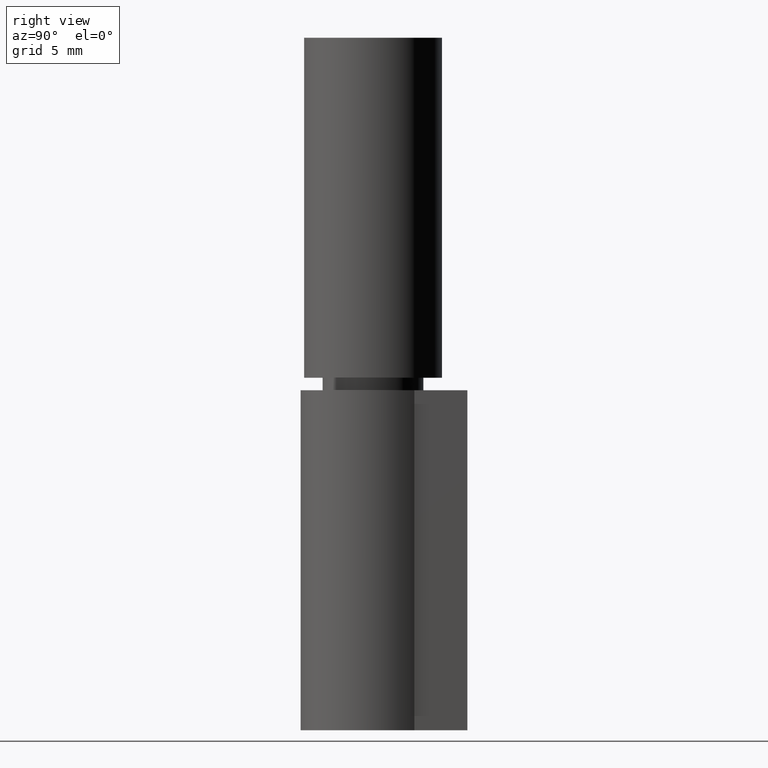
[diagram: clean part render]
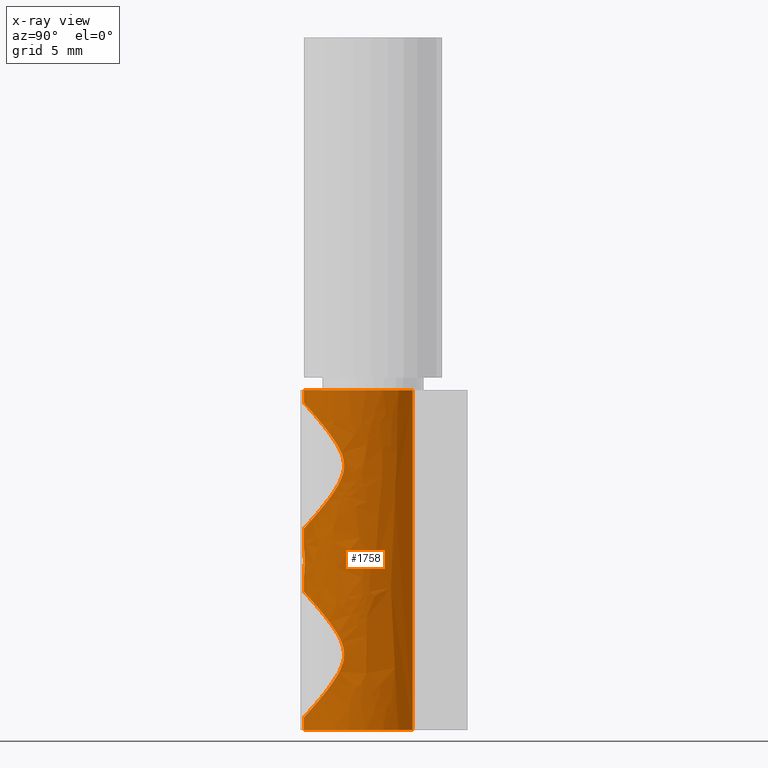
[diagram: x-ray — body ghosted, one internal face saturated and labeled with its STEP entity id]
A machine part, right view, then the same camera in x-ray: the body is ghosted and one INTERNAL B-rep face — a face not visible from any outside direction — is saturated and labeled: STEP entity #1758.
In plain terms, the highlighted face is a freeform B-spline surface patch.
Its self-contained STEP definition (entity closure, byte-faithful):
#96=CARTESIAN_POINT('',(-4.999809404037151,-2.291731154517972,21.043633673075721));
#97=VERTEX_POINT('',#96);
#103=CARTESIAN_POINT('',(0.008676858453115,-5.499993417099950,16.000008526232559));
#104=VERTEX_POINT('',#103);
#105=CARTESIAN_POINT('',(0.008676858453115,-5.499993417099950,16.000008526232559));
#106=CARTESIAN_POINT('',(-0.080784923827945,-5.500134550624921,15.999853276554420));
#107=CARTESIAN_POINT('',(-0.170549606938605,-5.498094897401253,16.002096592066550));
#108=CARTESIAN_POINT('',(-0.350699646057233,-5.489548678629170,16.011499682221821));
#109=CARTESIAN_POINT('',(-0.441114863073433,-5.483014545212495,16.018689827830791));
#110=CARTESIAN_POINT('',(-0.708650556812262,-5.457098901191289,16.047225255302148));
#111=CARTESIAN_POINT('',(-0.883649623946762,-5.431374606062905,16.075564668563370));
#112=CARTESIAN_POINT('',(-1.227349352279158,-5.364166543728204,16.149792405789420));
#113=CARTESIAN_POINT('',(-1.396048379229293,-5.322678177001357,16.195684821403319));
#114=CARTESIAN_POINT('',(-1.727341705989915,-5.224571579478838,16.304610105594659));
#115=CARTESIAN_POINT('',(-1.886942217365842,-5.168839463377718,16.366661082855881));
#116=CARTESIAN_POINT('',(-2.194580352817178,-5.045916549417417,16.504202206258970));
#117=CARTESIAN_POINT('',(-2.342752400184410,-4.978676278340488,16.579745394818289));
#118=CARTESIAN_POINT('',(-2.557198036339049,-4.870029231134101,16.702615128889619));
#119=CARTESIAN_POINT('',(-2.627461894592510,-4.832463424127649,16.745224902376972));
#120=CARTESIAN_POINT('',(-2.765075707142062,-4.755062342731410,16.833343828866099));
#121=CARTESIAN_POINT('',(-2.832067245767884,-4.715434991052143,16.878616026846249));
#122=CARTESIAN_POINT('',(-3.158546464471196,-4.513096640098529,17.110748164577199));
#123=CARTESIAN_POINT('',(-3.392917613499946,-4.337865701032975,17.314642688254079));
#124=CARTESIAN_POINT('',(-3.711169997530267,-4.061650263324478,17.645801212214941));
#125=CARTESIAN_POINT('',(-3.811640952820332,-3.967331319094510,17.760459472245518));
#126=CARTESIAN_POINT('',(-3.954338909557579,-3.823327560953631,17.939116680770990));
#127=CARTESIAN_POINT('',(-4.000551184544543,-3.774914592827679,17.999778121034311));
#128=CARTESIAN_POINT('',(-4.089669597621581,-3.678178361810828,18.122441324634160));
#129=CARTESIAN_POINT('',(-4.132671695294628,-3.629759973523819,18.184559861438181));
#130=CARTESIAN_POINT('',(-4.257183541597338,-3.484639733276066,18.373382483329308));
#131=CARTESIAN_POINT('',(-4.334212861784474,-3.388049853546200,18.502530147277191));
#132=CARTESIAN_POINT('',(-4.476908033376882,-3.197121259712310,18.768397036304350));
#133=CARTESIAN_POINT('',(-4.542576735238013,-3.102759303640565,18.905098522358589));
#134=CARTESIAN_POINT('',(-4.632641913837048,-2.965085267550396,19.117307755812959));
#135=CARTESIAN_POINT('',(-4.661253405254054,-2.919848456473182,19.189245859647471));
#136=CARTESIAN_POINT('',(-4.715609675131811,-2.831223575822745,19.335926819755102));
#137=CARTESIAN_POINT('',(-4.741385910462467,-2.787779609814800,19.410765627595708));
#138=CARTESIAN_POINT('',(-4.814059912015500,-2.661644440418063,19.639683088160819));
#139=CARTESIAN_POINT('',(-4.855884421372595,-2.583843147306717,19.796591238424671));
#140=CARTESIAN_POINT('',(-4.907928241049020,-2.482698135703603,20.041255712617421));
#141=CARTESIAN_POINT('',(-4.923484380651025,-2.451605491699300,20.124376092272321));
#142=CARTESIAN_POINT('',(-4.943910961021643,-2.409999535110414,20.251937654696519));
#143=CARTESIAN_POINT('',(-4.950243977492641,-2.396951556336771,20.295029096335611));
#144=CARTESIAN_POINT('',(-4.961784589882092,-2.372970028874875,20.381458758253839));
#145=CARTESIAN_POINT('',(-4.967005711705366,-2.362009638988951,20.424867736673772));
#146=CARTESIAN_POINT('',(-4.990319971063668,-2.312731457381507,20.642942584221931));
#147=CARTESIAN_POINT('',(-5.000089183198717,-2.291119200301539,20.820714967014059));
#148=CARTESIAN_POINT('',(-4.999992603734071,-2.291329949758778,21.016207306805441));
#149=CARTESIAN_POINT('',(-4.999929024735886,-2.291469165073258,21.029928814025642));
#150=CARTESIAN_POINT('',(-4.999809404037151,-2.291731154517972,21.043633673075721));
#151=B_SPLINE_CURVE_WITH_KNOTS('',3,(#105,#106,#107,#108,#109,#110,#111,#112,#113,#114,#115,#116,#117,#118,#119,#120,#121,#122,#123,#124,#125,#126,#127,#128,#129,#130,#131,#132,#133,#134,#135,#136,#137,#138,#139,#140,#141,#142,#143,#144,#145,#146,#147,#148,#149,#150),.UNSPECIFIED.,.F.,.U.,(4,2,2,2,2,2,2,2,2,2,2,2,2,2,2,2,2,2,2,2,2,2,4),(0.499999999999985,0.507812499999985,0.515624999999985,0.531249999999986,0.546874999999986,0.562499999999986,0.578124999999986,0.585937499999986,0.593749999999986,0.624999999999987,0.640624999999987,0.648437499999987,0.656249999999987,0.671874999999986,0.687499999999986,0.695312499999986,0.703124999999986,0.718749999999985,0.726562499999985,0.730468749999985,0.734374999999985,0.749999999999986,0.751180852995410),.UNSPECIFIED.);
#152=EDGE_CURVE('',#104,#97,#151,.T.);
#154=CARTESIAN_POINT('',(4.961330808935002,-2.373882392296829,20.379361019591158));
#155=VERTEX_POINT('',#154);
#156=CARTESIAN_POINT('',(4.961330808935002,-2.373882392296829,20.379361019591158));
#157=CARTESIAN_POINT('',(4.959088415303588,-2.378568334688204,20.361436829166820));
#158=CARTESIAN_POINT('',(4.956753091624329,-2.383431991897165,20.343554438352410));
#159=CARTESIAN_POINT('',(4.948445386169573,-2.400664333857982,20.282511320876420));
#160=CARTESIAN_POINT('',(4.942058526417992,-2.413797092986227,20.239811808951110));
#161=CARTESIAN_POINT('',(4.921462427600614,-2.455665007517480,20.113136917065411));
#162=CARTESIAN_POINT('',(4.905821867546259,-2.486859252249547,20.030579556220470));
#163=CARTESIAN_POINT('',(4.853597156467143,-2.588141527937298,19.787541039380720));
#164=CARTESIAN_POINT('',(4.811747444323277,-2.665814080688976,19.631634073252609));
#165=CARTESIAN_POINT('',(4.739155646772066,-2.791567567313084,19.404150399025561));
#166=CARTESIAN_POINT('',(4.713256268393127,-2.835142021115774,19.329273999388391));
#167=CARTESIAN_POINT('',(4.658712222898223,-2.923903571547584,19.182719022130598));
#168=CARTESIAN_POINT('',(4.630022798872703,-2.969174383487604,19.110879728573369));
#169=CARTESIAN_POINT('',(4.539779405076463,-3.106853499816067,18.899057376230470));
#170=CARTESIAN_POINT('',(4.474065628863778,-3.201089808219844,18.762733489810770));
#171=CARTESIAN_POINT('',(4.331474389874717,-3.391542690334147,18.497810204967660));
#172=CARTESIAN_POINT('',(4.254593775759331,-3.487782578590235,18.369229287392400));
#173=CARTESIAN_POINT('',(4.089130640738977,-3.680380283324808,18.118761925428331));
#174=CARTESIAN_POINT('',(4.000549664488215,-3.776750512340317,17.996883499915601));
#175=CARTESIAN_POINT('',(3.858166758270776,-3.920351344539728,17.818754803592441));
#176=CARTESIAN_POINT('',(3.809036657891725,-3.968130144490214,17.760082807190450));
#177=CARTESIAN_POINT('',(3.708329520686572,-4.062401481608275,17.645284570276971));
#178=CARTESIAN_POINT('',(3.656667863371630,-4.108984842103827,17.589044366213049));
#179=CARTESIAN_POINT('',(3.391678599296154,-4.338814193692006,17.313534351848741));
#180=CARTESIAN_POINT('',(3.158547802931772,-4.512837148450661,17.111072188894060));
#181=CARTESIAN_POINT('',(2.771820823709972,-4.752900283825866,16.835621428214122));
#182=CARTESIAN_POINT('',(2.636696663350292,-4.829420806716314,16.748561139928849));
#183=CARTESIAN_POINT('',(2.423443093949135,-4.937945853013662,16.625798086104979));
#184=CARTESIAN_POINT('',(2.350481701859942,-4.973125719411288,16.586129509301120));
#185=CARTESIAN_POINT('',(2.201214759960393,-5.040971604135963,16.509825129490480));
#186=CARTESIAN_POINT('',(2.125460012818958,-5.073391904562900,16.473465145179109));
#187=CARTESIAN_POINT('',(1.894751085388502,-5.165984958483707,16.369844771567120));
#188=CARTESIAN_POINT('',(1.736363448555255,-5.221503610537742,16.308024843529822));
#189=CARTESIAN_POINT('',(1.409752947784514,-5.318989655892848,16.199772369493889));
#190=CARTESIAN_POINT('',(1.241535203753097,-5.360964841027730,16.153332475188879));
#191=CARTESIAN_POINT('',(0.981019212165934,-5.412526579925899,16.096379615027981));
#192=CARTESIAN_POINT('',(0.893437540620994,-5.427672677341872,16.079669575455512));
#193=CARTESIAN_POINT('',(0.718086616520203,-5.453642081114246,16.051037110692249));
#194=CARTESIAN_POINT('',(0.630115457190484,-5.464506038457804,16.039069820569878));
#195=CARTESIAN_POINT('',(0.365314755914720,-5.490721086637914,16.010203441102679));
#196=CARTESIAN_POINT('',(0.187600423016770,-5.499711150050008,16.000319025588851));
#197=CARTESIAN_POINT('',(0.008676858453115,-5.499993417099950,16.000008526232559));
#198=B_SPLINE_CURVE_WITH_KNOTS('',3,(#156,#157,#158,#159,#160,#161,#162,#163,#164,#165,#166,#167,#168,#169,#170,#171,#172,#173,#174,#175,#176,#177,#178,#179,#180,#181,#182,#183,#184,#185,#186,#187,#188,#189,#190,#191,#192,#193,#194,#195,#196,#197),.UNSPECIFIED.,.F.,.U.,(4,2,2,2,2,2,2,2,2,2,2,2,2,2,2,2,2,2,2,2,4),(0.267921268389161,0.269531249999978,0.273437499999978,0.281249999999979,0.296874999999980,0.304687499999980,0.312499999999980,0.328124999999981,0.343749999999982,0.359374999999982,0.367187499999982,0.374999999999983,0.406249999999983,0.421874999999984,0.429687499999984,0.437499999999984,0.453124999999984,0.468749999999985,0.476562499999985,0.484374999999985,0.499999999999985),.UNSPECIFIED.);
#199=EDGE_CURVE('',#155,#104,#198,.T.);
#249=CARTESIAN_POINT('',(8.334804E-015,-5.500000261236031,26.000000997439649));
#250=VERTEX_POINT('',#249);
#251=CARTESIAN_POINT('',(8.334804E-015,-5.500000261236031,26.000000997439649));
#252=CARTESIAN_POINT('',(0.181587928736690,-5.500000265363015,26.000000997439649));
#253=CARTESIAN_POINT('',(0.360691474668521,-5.491034096903575,25.990142896635330));
#254=CARTESIAN_POINT('',(0.714240424979313,-5.456318884250115,25.951917306236890));
#255=CARTESIAN_POINT('',(0.888684585758922,-5.430565252638966,25.923544971929449));
#256=CARTESIAN_POINT('',(1.146963319821644,-5.379793779031893,25.867468155357489));
#257=CARTESIAN_POINT('',(1.232490467084030,-5.360842633896119,25.846517750625338));
#258=CARTESIAN_POINT('',(1.402417684959101,-5.318918377787195,25.800103290857621));
#259=CARTESIAN_POINT('',(1.486358800048491,-5.296047179589971,25.774751736253791));
#260=CARTESIAN_POINT('',(1.733166437057914,-5.222606397142189,25.693204860751710));
#261=CARTESIAN_POINT('',(1.891936394143571,-5.167006060920747,25.631295691770809));
#262=CARTESIAN_POINT('',(2.199021237986424,-5.043975131223390,25.493620858988869));
#263=CARTESIAN_POINT('',(2.347331397725299,-4.976537988697775,25.417850002408940));
#264=CARTESIAN_POINT('',(2.562446511266812,-4.867274662650745,25.294265370677561));
#265=CARTESIAN_POINT('',(2.632809702849915,-4.829545693024178,25.251462505337280));
#266=CARTESIAN_POINT('',(2.769661360783474,-4.752386488408163,25.163603743996870));
#267=CARTESIAN_POINT('',(2.836349383043150,-4.712856748663134,25.118435537835762));
#268=CARTESIAN_POINT('',(3.161629078040123,-4.510872240541992,24.886669976445010));
#269=CARTESIAN_POINT('',(3.396027523846340,-4.335484087013582,24.682575438114380));
#270=CARTESIAN_POINT('',(3.661802543530612,-4.104414470274930,24.405452431986522));
#271=CARTESIAN_POINT('',(3.713579815786010,-4.057605901081645,24.348910538088340));
#272=CARTESIAN_POINT('',(3.814445504301900,-3.962934478274310,24.233555644321630));
#273=CARTESIAN_POINT('',(3.863580279005080,-3.915017962424532,24.174674272558249));
#274=CARTESIAN_POINT('',(4.005959559394571,-3.771018530978817,23.995914866824410));
#275=CARTESIAN_POINT('',(4.094567787501176,-3.674340097908105,23.873535242933588));
#276=CARTESIAN_POINT('',(4.260104170196593,-3.481060196392913,23.621869965474151));
#277=CARTESIAN_POINT('',(4.337031083426829,-3.384445789761424,23.492593012131511));
#278=CARTESIAN_POINT('',(4.479697350340715,-3.193216341149601,23.226021037705792));
#279=CARTESIAN_POINT('',(4.545440339792166,-3.098576615119479,23.088746136483419));
#280=CARTESIAN_POINT('',(4.635681788303387,-2.960334363800767,22.875214423216718));
#281=CARTESIAN_POINT('',(4.664409234683967,-2.914806741814870,22.802628972947730));
#282=CARTESIAN_POINT('',(4.718778434592707,-2.825941471379133,22.655087464036558));
#283=CARTESIAN_POINT('',(4.744374422298876,-2.782684211664854,22.580275739606090));
#284=CARTESIAN_POINT('',(4.816334433026022,-2.657498301958202,22.352166042106880));
#285=CARTESIAN_POINT('',(4.857920699485886,-2.580008294991763,22.195281916973052));
#286=CARTESIAN_POINT('',(4.909773878380458,-2.479045463802991,21.949286498722810));
#287=CARTESIAN_POINT('',(4.925298072860339,-2.447954291927216,21.865330167669899));
#288=CARTESIAN_POINT('',(4.952077952017502,-2.393317213407169,21.695903028271069));
#289=CARTESIAN_POINT('',(4.963404937441652,-2.369638939906114,21.610134166671081));
#290=CARTESIAN_POINT('',(4.981708729984222,-2.330913303631254,21.436153707869749));
#291=CARTESIAN_POINT('',(4.988686083461489,-2.315870033680356,21.347941238389598));
#292=CARTESIAN_POINT('',(4.995640008284445,-2.300811292730121,21.213527858224090));
#293=CARTESIAN_POINT('',(4.997374952882122,-2.297035474572037,21.168212462908720));
#294=CARTESIAN_POINT('',(4.999602160259736,-2.292183851321631,21.077652500548460));
#295=CARTESIAN_POINT('',(5.000095999870496,-2.291104874849864,21.032546434138670));
#296=CARTESIAN_POINT('',(4.999539243316150,-2.292319771982752,20.807868833356508));
#297=CARTESIAN_POINT('',(4.989449516925052,-2.314628493521743,20.630873255737342));
#298=CARTESIAN_POINT('',(4.967536751959891,-2.360877070322448,20.430575710205499));
#299=CARTESIAN_POINT('',(4.964528436286543,-2.367198973484117,20.404925832721698));
#300=CARTESIAN_POINT('',(4.961330808935002,-2.373882392296829,20.379361019591158));
#301=B_SPLINE_CURVE_WITH_KNOTS('',3,(#251,#252,#253,#254,#255,#256,#257,#258,#259,#260,#261,#262,#263,#264,#265,#266,#267,#268,#269,#270,#271,#272,#273,#274,#275,#276,#277,#278,#279,#280,#281,#282,#283,#284,#285,#286,#287,#288,#289,#290,#291,#292,#293,#294,#295,#296,#297,#298,#299,#300),.UNSPECIFIED.,.F.,.U.,(4,2,2,2,2,2,2,2,2,2,2,2,2,2,2,2,2,2,2,2,2,2,2,2,4),(0.0,0.015624999999999,0.031249999999997,0.039062499999996,0.046874999999995,0.062499999999994,0.078124999999993,0.085937499999992,0.093749999999991,0.124999999999988,0.132812499999988,0.140624999999987,0.156249999999986,0.171874999999984,0.187499999999983,0.195312499999982,0.203124999999982,0.218749999999980,0.226562499999979,0.234374999999979,0.242187499999978,0.246093749999978,0.249999999999978,0.265624999999978,0.267921268389161),.UNSPECIFIED.);
#302=EDGE_CURVE('',#250,#155,#301,.T.);
#304=CARTESIAN_POINT('',(-4.999809404037151,-2.291731154517972,21.043633673075721));
#305=CARTESIAN_POINT('',(-4.999136218716493,-2.293202482047438,21.120599877438970));
#306=CARTESIAN_POINT('',(-4.996689068687868,-2.298546011524399,21.197040954605349));
#307=CARTESIAN_POINT('',(-4.987703046087425,-2.317988467679965,21.361616267186061));
#308=CARTESIAN_POINT('',(-4.980513357640310,-2.333471090744721,21.449627092508599));
#309=CARTESIAN_POINT('',(-4.966404971656946,-2.363272902115973,21.580294793935259));
#310=CARTESIAN_POINT('',(-4.961147525447735,-2.374302000412293,21.623626075961781));
#311=CARTESIAN_POINT('',(-4.949543835802675,-2.398397318531146,21.709866354592450));
#312=CARTESIAN_POINT('',(-4.943179633652782,-2.411499778874976,21.752882641953789));
#313=CARTESIAN_POINT('',(-4.922621111614618,-2.453340656681865,21.880469075396519));
#314=CARTESIAN_POINT('',(-4.907005763363770,-2.484521029452940,21.963433154675950));
#315=CARTESIAN_POINT('',(-4.854911133243586,-2.585671988419703,22.207256654471930));
#316=CARTESIAN_POINT('',(-4.813222747261709,-2.663130054817260,22.363116826817251));
#317=CARTESIAN_POINT('',(-4.741104651518239,-2.788251229627990,22.590040675597550));
#318=CARTESIAN_POINT('',(-4.715456014499448,-2.831481607373428,22.664517908846928));
#319=CARTESIAN_POINT('',(-4.660972654135478,-2.920298649153567,22.811485441325701));
#320=CARTESIAN_POINT('',(-4.632137358633913,-2.965877491097034,22.883946447805592));
#321=CARTESIAN_POINT('',(-4.541683139536753,-3.104082673218060,23.096880139611070));
#322=CARTESIAN_POINT('',(-4.475881804977987,-3.198552103796741,23.233645765708150));
#323=CARTESIAN_POINT('',(-4.333313568960246,-3.389194604782345,23.499016882945650));
#324=CARTESIAN_POINT('',(-4.256542779873210,-3.485392275643062,23.627601652434169));
#325=CARTESIAN_POINT('',(-4.091597501110796,-3.677626768917929,23.877720846195309));
#326=CARTESIAN_POINT('',(-4.003423825719435,-3.773676360790262,23.999246295117000));
#327=CARTESIAN_POINT('',(-3.861973460043877,-3.916594625581618,24.176615494811220));
#328=CARTESIAN_POINT('',(-3.813288368501809,-3.964044120594545,24.234914589265209));
#329=CARTESIAN_POINT('',(-3.712697092564347,-4.058409891090378,24.349883745655362));
#330=CARTESIAN_POINT('',(-3.660676373020296,-4.105424377055870,24.406670896479230));
#331=CARTESIAN_POINT('',(-3.393576171887767,-4.337489029483122,24.684951703999289));
#332=CARTESIAN_POINT('',(-3.158715045510495,-4.512839509248054,24.888943447771680));
#333=CARTESIAN_POINT('',(-2.769656421224683,-4.754190100658805,25.165855272201458));
#334=CARTESIAN_POINT('',(-2.633799825173680,-4.831023179712308,25.253261930221200));
#335=CARTESIAN_POINT('',(-2.419575906024463,-4.939847177842526,25.376350498489408));
#336=CARTESIAN_POINT('',(-2.346212864072399,-4.975136288713563,25.416137427594890));
#337=CARTESIAN_POINT('',(-2.197408833238110,-5.042627081517066,25.492035079332851));
#338=CARTESIAN_POINT('',(-2.121852976699979,-5.074898224175911,25.528224976260130));
#339=CARTESIAN_POINT('',(-1.891628819590702,-5.167116370263851,25.631418732569500));
#340=CARTESIAN_POINT('',(-1.733416110406895,-5.222482460270861,25.693066291993880));
#341=CARTESIAN_POINT('',(-1.488428153538835,-5.295455795448400,25.774095670720101));
#342=CARTESIAN_POINT('',(-1.405484517935641,-5.318097670058886,25.799193834605610));
#343=CARTESIAN_POINT('',(-1.236898924388103,-5.359816146627351,25.845382269260220));
#344=CARTESIAN_POINT('',(-1.151031796261812,-5.378936448207682,25.866520774915060));
#345=CARTESIAN_POINT('',(-0.890678582176010,-5.430284969420651,25.923236460579009));
#346=CARTESIAN_POINT('',(-0.715233309624032,-5.456207805398440,25.951795000914419));
#347=CARTESIAN_POINT('',(-0.449203030117919,-5.482349819756129,25.980580509177621));
#348=CARTESIAN_POINT('',(-0.360048282424248,-5.488936480978458,25.987828641313360));
#349=CARTESIAN_POINT('',(-0.180763047445453,-5.497761626391798,25.997538800332752));
#350=CARTESIAN_POINT('',(-0.090793964368346,-5.500000259172538,26.000000997439638));
#351=CARTESIAN_POINT('',(8.612631E-015,-5.500000261236029,26.000000997439638));
#352=B_SPLINE_CURVE_WITH_KNOTS('',3,(#304,#305,#306,#307,#308,#309,#310,#311,#312,#313,#314,#315,#316,#317,#318,#319,#320,#321,#322,#323,#324,#325,#326,#327,#328,#329,#330,#331,#332,#333,#334,#335,#336,#337,#338,#339,#340,#341,#342,#343,#344,#345,#346,#347,#348,#349,#350,#351),.UNSPECIFIED.,.F.,.U.,(4,2,2,2,2,2,2,2,2,2,2,2,2,2,2,2,2,2,2,2,2,2,2,4),(0.751180852995411,0.757812499999986,0.765624999999986,0.769531249999986,0.773437499999986,0.781249999999986,0.796874999999987,0.804687499999988,0.812499999999988,0.828124999999989,0.843749999999990,0.859374999999991,0.867187499999991,0.874999999999992,0.906249999999994,0.921874999999995,0.929687499999996,0.937499999999996,0.953124999999997,0.960937499999998,0.968749999999998,0.984374999999999,0.992187500000000,1.0),.UNSPECIFIED.);
#353=EDGE_CURVE('',#97,#250,#352,.T.);
#424=CARTESIAN_POINT('',(-4.999809404037151,-2.291731154517972,6.043633673075664));
#425=VERTEX_POINT('',#424);
#431=CARTESIAN_POINT('',(0.008676858453734,-5.499993417099950,1.000008526232532));
#432=VERTEX_POINT('',#431);
#433=CARTESIAN_POINT('',(0.008676858453734,-5.499993417099950,1.000008526232532));
#434=CARTESIAN_POINT('',(-0.080784923828001,-5.500134550624921,0.999853276554391));
#435=CARTESIAN_POINT('',(-0.170549606938661,-5.498094897401249,1.002096592066513));
#436=CARTESIAN_POINT('',(-0.350699646057288,-5.489548678629166,1.011499682221778));
#437=CARTESIAN_POINT('',(-0.441114863073495,-5.483014545212488,1.018689827830760));
#438=CARTESIAN_POINT('',(-0.708650556812319,-5.457098901191280,1.047225255302118));
#439=CARTESIAN_POINT('',(-0.883649623946813,-5.431374606062898,1.075564668563340));
#440=CARTESIAN_POINT('',(-1.227349352279206,-5.364166543728192,1.149792405789396));
#441=CARTESIAN_POINT('',(-1.396048379229337,-5.322678177001347,1.195684821403293));
#442=CARTESIAN_POINT('',(-1.727341705989955,-5.224571579478824,1.304610105594631));
#443=CARTESIAN_POINT('',(-1.886942217365883,-5.168839463377702,1.366661082855847));
#444=CARTESIAN_POINT('',(-2.194580352817217,-5.045916549417401,1.504202206258959));
#445=CARTESIAN_POINT('',(-2.342752400184444,-4.978676278340473,1.579745394818269));
#446=CARTESIAN_POINT('',(-2.557198036339084,-4.870029231134085,1.702615128889596));
#447=CARTESIAN_POINT('',(-2.627461894592545,-4.832463424127629,1.745224902376944));
#448=CARTESIAN_POINT('',(-2.765075707142094,-4.755062342731389,1.833343828866078));
#449=CARTESIAN_POINT('',(-2.832067245767912,-4.715434991052124,1.878616026846222));
#450=CARTESIAN_POINT('',(-3.158546464471218,-4.513096640098509,2.110748164577175));
#451=CARTESIAN_POINT('',(-3.392917613499967,-4.337865701032958,2.314642688254059));
#452=CARTESIAN_POINT('',(-3.711169997530282,-4.061650263324465,2.645801212214911));
#453=CARTESIAN_POINT('',(-3.811640952820346,-3.967331319094498,2.760459472245495));
#454=CARTESIAN_POINT('',(-3.954338909557590,-3.823327560953621,2.939116680770968));
#455=CARTESIAN_POINT('',(-4.000551184544551,-3.774914592827665,2.999778121034280));
#456=CARTESIAN_POINT('',(-4.089669597621589,-3.678178361810817,3.122441324634137));
#457=CARTESIAN_POINT('',(-4.132671695294638,-3.629759973523808,3.184559861438155));
#458=CARTESIAN_POINT('',(-4.257183541597345,-3.484639733276056,3.373382483329281));
#459=CARTESIAN_POINT('',(-4.334212861784481,-3.388049853546190,3.502530147277155));
#460=CARTESIAN_POINT('',(-4.476908033376889,-3.197121259712302,3.768397036304330));
#461=CARTESIAN_POINT('',(-4.542576735238020,-3.102759303640558,3.905098522358566));
#462=CARTESIAN_POINT('',(-4.632641913837055,-2.965085267550388,4.117307755812938));
#463=CARTESIAN_POINT('',(-4.661253405254057,-2.919848456473176,4.189245859647442));
#464=CARTESIAN_POINT('',(-4.715609675131813,-2.831223575822739,4.335926819755060));
#465=CARTESIAN_POINT('',(-4.741385910462472,-2.787779609814792,4.410765627595692));
#466=CARTESIAN_POINT('',(-4.814059912015501,-2.661644440418057,4.639683088160785));
#467=CARTESIAN_POINT('',(-4.855884421372598,-2.583843147306713,4.796591238424637));
#468=CARTESIAN_POINT('',(-4.907928241049022,-2.482698135703599,5.041255712617384));
#469=CARTESIAN_POINT('',(-4.923484380651026,-2.451605491699300,5.124376092272289));
#470=CARTESIAN_POINT('',(-4.943910961021643,-2.409999535110413,5.251937654696483));
#471=CARTESIAN_POINT('',(-4.950243977492643,-2.396951556336767,5.295029096335569));
#472=CARTESIAN_POINT('',(-4.961784589882093,-2.372970028874871,5.381458758253799));
#473=CARTESIAN_POINT('',(-4.967005711705366,-2.362009638988949,5.424867736673741));
#474=CARTESIAN_POINT('',(-4.990319971063673,-2.312731457381507,5.642942584221912));
#475=CARTESIAN_POINT('',(-5.000089183198716,-2.291119200301540,5.820714967014019));
#476=CARTESIAN_POINT('',(-4.999992603734071,-2.291329949758779,6.016207306805407));
#477=CARTESIAN_POINT('',(-4.999929024735885,-2.291469165073259,6.029928814025609));
#478=CARTESIAN_POINT('',(-4.999809404037151,-2.291731154517972,6.043633673075664));
#479=B_SPLINE_CURVE_WITH_KNOTS('',3,(#433,#434,#435,#436,#437,#438,#439,#440,#441,#442,#443,#444,#445,#446,#447,#448,#449,#450,#451,#452,#453,#454,#455,#456,#457,#458,#459,#460,#461,#462,#463,#464,#465,#466,#467,#468,#469,#470,#471,#472,#473,#474,#475,#476,#477,#478),.UNSPECIFIED.,.F.,.U.,(4,2,2,2,2,2,2,2,2,2,2,2,2,2,2,2,2,2,2,2,2,2,4),(0.500000000000005,0.507812500000005,0.515625000000005,0.531250000000005,0.546875000000005,0.562500000000005,0.578125000000005,0.585937500000005,0.593750000000005,0.625000000000005,0.640625000000005,0.648437500000005,0.656250000000005,0.671875000000005,0.687500000000005,0.695312500000005,0.703125000000005,0.718750000000005,0.726562500000005,0.730468750000005,0.734375000000005,0.750000000000005,0.751180852995430),.UNSPECIFIED.);
#480=EDGE_CURVE('',#432,#425,#479,.T.);
#482=CARTESIAN_POINT('',(4.961330808935004,-2.373882392296827,5.379361019591132));
#483=VERTEX_POINT('',#482);
#484=CARTESIAN_POINT('',(4.961330808935004,-2.373882392296827,5.379361019591132));
#485=CARTESIAN_POINT('',(4.959088415303586,-2.378568334688211,5.361436829166756));
#486=CARTESIAN_POINT('',(4.956753091624321,-2.383431991897181,5.343554438352308));
#487=CARTESIAN_POINT('',(4.948445386169558,-2.400664333858009,5.282511320876278));
#488=CARTESIAN_POINT('',(4.942058526417979,-2.413797092986256,5.239811808950971));
#489=CARTESIAN_POINT('',(4.921462427600596,-2.455665007517515,5.113136917065281));
#490=CARTESIAN_POINT('',(4.905821867546243,-2.486859252249582,5.030579556220339));
#491=CARTESIAN_POINT('',(4.853597156467123,-2.588141527937335,4.787541039380594));
#492=CARTESIAN_POINT('',(4.811747444323252,-2.665814080689015,4.631634073252482));
#493=CARTESIAN_POINT('',(4.739155646772039,-2.791567567313126,4.404150399025438));
#494=CARTESIAN_POINT('',(4.713256268393096,-2.835142021115823,4.329273999388258));
#495=CARTESIAN_POINT('',(4.658712222898194,-2.923903571547633,4.182719022130473));
#496=CARTESIAN_POINT('',(4.630022798872672,-2.969174383487654,4.110879728573242));
#497=CARTESIAN_POINT('',(4.539779405076428,-3.106853499816116,3.899057376230350));
#498=CARTESIAN_POINT('',(4.474065628863746,-3.201089808219892,3.762733489810673));
#499=CARTESIAN_POINT('',(4.331474389874678,-3.391542690334194,3.497810204967561));
#500=CARTESIAN_POINT('',(4.254593775759294,-3.487782578590281,3.369229287392293));
#501=CARTESIAN_POINT('',(4.089130640738935,-3.680380283324853,3.118761925428232));
#502=CARTESIAN_POINT('',(4.000549664488173,-3.776750512340361,2.996883499915507));
#503=CARTESIAN_POINT('',(3.858166758270732,-3.920351344539773,2.818754803592349));
#504=CARTESIAN_POINT('',(3.809036657891679,-3.968130144490258,2.760082807190353));
#505=CARTESIAN_POINT('',(3.708329520686528,-4.062401481608317,2.645284570276882));
#506=CARTESIAN_POINT('',(3.656667863371583,-4.108984842103871,2.589044366212950));
#507=CARTESIAN_POINT('',(3.391678599296105,-4.338814193692048,2.313534351848659));
#508=CARTESIAN_POINT('',(3.158547802931725,-4.512837148450697,2.111072188893979));
#509=CARTESIAN_POINT('',(2.771820823709921,-4.752900283825897,1.835621428214045));
#510=CARTESIAN_POINT('',(2.636696663350244,-4.829420806716342,1.748561139928781));
#511=CARTESIAN_POINT('',(2.423443093949082,-4.937945853013686,1.625798086104905));
#512=CARTESIAN_POINT('',(2.350481701859884,-4.973125719411315,1.586129509301055));
#513=CARTESIAN_POINT('',(2.201214759960334,-5.040971604135988,1.509825129490409));
#514=CARTESIAN_POINT('',(2.125460012818900,-5.073391904562925,1.473465145179035));
#515=CARTESIAN_POINT('',(1.894751085388443,-5.165984958483731,1.369844771567060));
#516=CARTESIAN_POINT('',(1.736363448555197,-5.221503610537760,1.308024843529760));
#517=CARTESIAN_POINT('',(1.409752947784454,-5.318989655892864,1.199772369493831));
#518=CARTESIAN_POINT('',(1.241535203753038,-5.360964841027744,1.153332475188821));
#519=CARTESIAN_POINT('',(0.981019212165873,-5.412526579925908,1.096379615027919));
#520=CARTESIAN_POINT('',(0.893437540620931,-5.427672677341881,1.079669575455459));
#521=CARTESIAN_POINT('',(0.718086616520140,-5.453642081114253,1.051037110692201));
#522=CARTESIAN_POINT('',(0.630115457190422,-5.464506038457810,1.039069820569831));
#523=CARTESIAN_POINT('',(0.365314755914658,-5.490721086637919,1.010203441102636));
#524=CARTESIAN_POINT('',(0.187600423016711,-5.499711150050009,1.000319025588814));
#525=CARTESIAN_POINT('',(0.008676858453734,-5.499993417099950,1.000008526232532));
#526=B_SPLINE_CURVE_WITH_KNOTS('',3,(#484,#485,#486,#487,#488,#489,#490,#491,#492,#493,#494,#495,#496,#497,#498,#499,#500,#501,#502,#503,#504,#505,#506,#507,#508,#509,#510,#511,#512,#513,#514,#515,#516,#517,#518,#519,#520,#521,#522,#523,#524,#525),.UNSPECIFIED.,.F.,.U.,(4,2,2,2,2,2,2,2,2,2,2,2,2,2,2,2,2,2,2,2,4),(0.267921268389184,0.269531250000004,0.273437500000004,0.281250000000004,0.296875000000004,0.304687500000004,0.312500000000004,0.328125000000004,0.343750000000004,0.359375000000004,0.367187500000004,0.375000000000004,0.406250000000004,0.421875000000005,0.429687500000005,0.437500000000005,0.453125000000005,0.468750000000005,0.476562500000005,0.484375000000005,0.500000000000005),.UNSPECIFIED.);
#527=EDGE_CURVE('',#483,#432,#526,.T.);
#577=CARTESIAN_POINT('',(-4.092863E-015,-5.500000261236031,11.000000997439599));
#578=VERTEX_POINT('',#577);
#579=CARTESIAN_POINT('',(-4.092863E-015,-5.500000261236031,11.000000997439599));
#580=CARTESIAN_POINT('',(0.181587928736692,-5.500000265363013,11.000000997439599));
#581=CARTESIAN_POINT('',(0.360691474668526,-5.491034096903575,10.990142896635289));
#582=CARTESIAN_POINT('',(0.714240424979322,-5.456318884250115,10.951917306236860));
#583=CARTESIAN_POINT('',(0.888684585758933,-5.430565252638965,10.923544971929420));
#584=CARTESIAN_POINT('',(1.146963319821659,-5.379793779031892,10.867468155357450));
#585=CARTESIAN_POINT('',(1.232490467084045,-5.360842633896115,10.846517750625290));
#586=CARTESIAN_POINT('',(1.402417684959118,-5.318918377787188,10.800103290857580));
#587=CARTESIAN_POINT('',(1.486358800048507,-5.296047179589967,10.774751736253750));
#588=CARTESIAN_POINT('',(1.733166437057932,-5.222606397142182,10.693204860751660));
#589=CARTESIAN_POINT('',(1.891936394143592,-5.167006060920741,10.631295691770760));
#590=CARTESIAN_POINT('',(2.199021237986448,-5.043975131223379,10.493620858988811));
#591=CARTESIAN_POINT('',(2.347331397725323,-4.976537988697762,10.417850002408890));
#592=CARTESIAN_POINT('',(2.562446511266840,-4.867274662650731,10.294265370677500));
#593=CARTESIAN_POINT('',(2.632809702849939,-4.829545693024165,10.251462505337230));
#594=CARTESIAN_POINT('',(2.769661360783498,-4.752386488408148,10.163603743996820));
#595=CARTESIAN_POINT('',(2.836349383043178,-4.712856748663119,10.118435537835699));
#596=CARTESIAN_POINT('',(3.161629078040153,-4.510872240541973,9.886669976444949));
#597=CARTESIAN_POINT('',(3.396027523846369,-4.335484087013557,9.682575438114302));
#598=CARTESIAN_POINT('',(3.661802543530644,-4.104414470274902,9.405452431986438));
#599=CARTESIAN_POINT('',(3.713579815786043,-4.057605901081616,9.348910538088262));
#600=CARTESIAN_POINT('',(3.814445504301935,-3.962934478274278,9.233555644321557));
#601=CARTESIAN_POINT('',(3.863580279005108,-3.915017962424503,9.174674272558168));
#602=CARTESIAN_POINT('',(4.005959559394600,-3.771018530978783,8.995914866824327));
#603=CARTESIAN_POINT('',(4.094567787501203,-3.674340097908071,8.873535242933501));
#604=CARTESIAN_POINT('',(4.260104170196621,-3.481060196392877,8.621869965474057));
#605=CARTESIAN_POINT('',(4.337031083426856,-3.384445789761388,8.492593012131414));
#606=CARTESIAN_POINT('',(4.479697350340742,-3.193216341149565,8.226021037705694));
#607=CARTESIAN_POINT('',(4.545440339792196,-3.098576615119438,8.088746136483319));
#608=CARTESIAN_POINT('',(4.635681788303415,-2.960334363800725,7.875214423216603));
#609=CARTESIAN_POINT('',(4.664409234683991,-2.914806741814829,7.802628972947626));
#610=CARTESIAN_POINT('',(4.718778434592730,-2.825941471379093,7.655087464036446));
#611=CARTESIAN_POINT('',(4.744374422298900,-2.782684211664812,7.580275739605978));
#612=CARTESIAN_POINT('',(4.816334433026040,-2.657498301958163,7.352166042106769));
#613=CARTESIAN_POINT('',(4.857920699485905,-2.580008294991728,7.195281916972922));
#614=CARTESIAN_POINT('',(4.909773878380474,-2.479045463802958,6.949286498722688));
#615=CARTESIAN_POINT('',(4.925298072860352,-2.447954291927187,6.865330167669774));
#616=CARTESIAN_POINT('',(4.952077952017512,-2.393317213407144,6.695903028270938));
#617=CARTESIAN_POINT('',(4.963404937441662,-2.369638939906092,6.610134166670949));
#618=CARTESIAN_POINT('',(4.981708729984231,-2.330913303631237,6.436153707869617));
#619=CARTESIAN_POINT('',(4.988686083461497,-2.315870033680342,6.347941238389474));
#620=CARTESIAN_POINT('',(4.995640008284448,-2.300811292730112,6.213527858223952));
#621=CARTESIAN_POINT('',(4.997374952882124,-2.297035474572030,6.168212462908584));
#622=CARTESIAN_POINT('',(4.999602160259736,-2.292183851321628,6.077652500548316));
#623=CARTESIAN_POINT('',(5.000095999870496,-2.291104874849863,6.032546434138525));
#624=CARTESIAN_POINT('',(4.999539243316146,-2.292319771982759,5.807868833356378));
#625=CARTESIAN_POINT('',(4.989449516925045,-2.314628493521760,5.630873255737203));
#626=CARTESIAN_POINT('',(4.967536751959888,-2.360877070322462,5.430575710205412));
#627=CARTESIAN_POINT('',(4.964528436286543,-2.367198973484122,5.404925832721643));
#628=CARTESIAN_POINT('',(4.961330808935004,-2.373882392296827,5.379361019591132));
#629=B_SPLINE_CURVE_WITH_KNOTS('',3,(#579,#580,#581,#582,#583,#584,#585,#586,#587,#588,#589,#590,#591,#592,#593,#594,#595,#596,#597,#598,#599,#600,#601,#602,#603,#604,#605,#606,#607,#608,#609,#610,#611,#612,#613,#614,#615,#616,#617,#618,#619,#620,#621,#622,#623,#624,#625,#626,#627,#628),.UNSPECIFIED.,.F.,.U.,(4,2,2,2,2,2,2,2,2,2,2,2,2,2,2,2,2,2,2,2,2,2,2,2,4),(0.0,0.015625000000000,0.031250000000001,0.039062500000001,0.046875000000001,0.062500000000001,0.078125000000002,0.085937500000002,0.093750000000002,0.125000000000003,0.132812500000003,0.140625000000003,0.156250000000003,0.171875000000003,0.187500000000003,0.195312500000003,0.203125000000003,0.218750000000004,0.226562500000004,0.234375000000004,0.242187500000004,0.246093750000004,0.250000000000004,0.265625000000004,0.267921268389184),.UNSPECIFIED.);
#630=EDGE_CURVE('',#578,#483,#629,.T.);
#632=CARTESIAN_POINT('',(-4.999809404037151,-2.291731154517972,6.043633673075664));
#633=CARTESIAN_POINT('',(-4.999136218716492,-2.293202482047438,6.120599877438921));
#634=CARTESIAN_POINT('',(-4.996689068687866,-2.298546011524400,6.197040954605310));
#635=CARTESIAN_POINT('',(-4.987703046087423,-2.317988467679967,6.361616267186023));
#636=CARTESIAN_POINT('',(-4.980513357640312,-2.333471090744723,6.449627092508568));
#637=CARTESIAN_POINT('',(-4.966404971656947,-2.363272902115974,6.580294793935228));
#638=CARTESIAN_POINT('',(-4.961147525447734,-2.374302000412294,6.623626075961751));
#639=CARTESIAN_POINT('',(-4.949543835802674,-2.398397318531146,6.709866354592412));
#640=CARTESIAN_POINT('',(-4.943179633652782,-2.411499778874976,6.752882641953750));
#641=CARTESIAN_POINT('',(-4.922621111614617,-2.453340656681865,6.880469075396472));
#642=CARTESIAN_POINT('',(-4.907005763363769,-2.484521029452938,6.963433154675902));
#643=CARTESIAN_POINT('',(-4.854911133243586,-2.585671988419703,7.207256654471886));
#644=CARTESIAN_POINT('',(-4.813222747261705,-2.663130054817262,7.363116826817209));
#645=CARTESIAN_POINT('',(-4.741104651518237,-2.788251229627992,7.590040675597505));
#646=CARTESIAN_POINT('',(-4.715456014499448,-2.831481607373430,7.664517908846898));
#647=CARTESIAN_POINT('',(-4.660972654135476,-2.920298649153569,7.811485441325660));
#648=CARTESIAN_POINT('',(-4.632137358633916,-2.965877491097030,7.883946447805544));
#649=CARTESIAN_POINT('',(-4.541683139536754,-3.104082673218059,8.096880139611027));
#650=CARTESIAN_POINT('',(-4.475881804977984,-3.198552103796742,8.233645765708120));
#651=CARTESIAN_POINT('',(-4.333313568960243,-3.389194604782345,8.499016882945604));
#652=CARTESIAN_POINT('',(-4.256542779873209,-3.485392275643064,8.627601652434141));
#653=CARTESIAN_POINT('',(-4.091597501110798,-3.677626768917928,8.877720846195274));
#654=CARTESIAN_POINT('',(-4.003423825719430,-3.773676360790267,8.999246295116967));
#655=CARTESIAN_POINT('',(-3.861973460043875,-3.916594625581621,9.176615494811173));
#656=CARTESIAN_POINT('',(-3.813288368501808,-3.964044120594550,9.234914589265177));
#657=CARTESIAN_POINT('',(-3.712697092564341,-4.058409891090380,9.349883745655314));
#658=CARTESIAN_POINT('',(-3.660676373020295,-4.105424377055869,9.406670896479181));
#659=CARTESIAN_POINT('',(-3.393576171887764,-4.337489029483123,9.684951703999246));
#660=CARTESIAN_POINT('',(-3.158715045510497,-4.512839509248058,9.888943447771656));
#661=CARTESIAN_POINT('',(-2.769656421224680,-4.754190100658805,10.165855272201410));
#662=CARTESIAN_POINT('',(-2.633799825173675,-4.831023179712310,10.253261930221161));
#663=CARTESIAN_POINT('',(-2.419575906024457,-4.939847177842528,10.376350498489380));
#664=CARTESIAN_POINT('',(-2.346212864072399,-4.975136288713562,10.416137427594840));
#665=CARTESIAN_POINT('',(-2.197408833238113,-5.042627081517066,10.492035079332810));
#666=CARTESIAN_POINT('',(-2.121852976699979,-5.074898224175912,10.528224976260089));
#667=CARTESIAN_POINT('',(-1.891628819590705,-5.167116370263847,10.631418732569450));
#668=CARTESIAN_POINT('',(-1.733416110406893,-5.222482460270861,10.693066291993850));
#669=CARTESIAN_POINT('',(-1.488428153538832,-5.295455795448402,10.774095670720071));
#670=CARTESIAN_POINT('',(-1.405484517935640,-5.318097670058889,10.799193834605580));
#671=CARTESIAN_POINT('',(-1.236898924388100,-5.359816146627349,10.845382269260170));
#672=CARTESIAN_POINT('',(-1.151031796261811,-5.378936448207682,10.866520774915021));
#673=CARTESIAN_POINT('',(-0.890678582176005,-5.430284969420652,10.923236460578970));
#674=CARTESIAN_POINT('',(-0.715233309624035,-5.456207805398440,10.951795000914389));
#675=CARTESIAN_POINT('',(-0.449203030117919,-5.482349819756129,10.980580509177580));
#676=CARTESIAN_POINT('',(-0.360048282424246,-5.488936480978456,10.987828641313319));
#677=CARTESIAN_POINT('',(-0.180763047445451,-5.497761626391800,10.997538800332720));
#678=CARTESIAN_POINT('',(-0.090793964368346,-5.500000259172539,11.000000997439599));
#679=CARTESIAN_POINT('',(-4.323256E-015,-5.500000261236031,11.000000997439599));
#680=B_SPLINE_CURVE_WITH_KNOTS('',3,(#632,#633,#634,#635,#636,#637,#638,#639,#640,#641,#642,#643,#644,#645,#646,#647,#648,#649,#650,#651,#652,#653,#654,#655,#656,#657,#658,#659,#660,#661,#662,#663,#664,#665,#666,#667,#668,#669,#670,#671,#672,#673,#674,#675,#676,#677,#678,#679),.UNSPECIFIED.,.F.,.U.,(4,2,2,2,2,2,2,2,2,2,2,2,2,2,2,2,2,2,2,2,2,2,2,4),(0.751180852995430,0.757812500000005,0.765625000000005,0.769531250000005,0.773437500000005,0.781250000000005,0.796875000000005,0.804687500000004,0.812500000000004,0.828125000000004,0.843750000000004,0.859375000000003,0.867187500000003,0.875000000000003,0.906250000000002,0.921875000000002,0.929687500000002,0.937500000000002,0.953125000000002,0.960937500000001,0.968750000000001,0.984375000000001,0.992187500000000,1.0),.UNSPECIFIED.);
#681=EDGE_CURVE('',#425,#578,#680,.T.);
#1557=CARTESIAN_POINT('',(-4.499999909455735,3.162328157364740,0.0));
#1558=VERTEX_POINT('',#1557);
#1573=CARTESIAN_POINT('',(4.500000331288090,3.162327907544380,0.0));
#1574=VERTEX_POINT('',#1573);
#1580=CARTESIAN_POINT('',(4.500000331288090,3.162327907544380,0.0));
#1581=CARTESIAN_POINT('',(7.317418869377793,-0.846888616480075,0.0));
#1582=CARTESIAN_POINT('',(3.658709395670331,-4.106567947685147,0.0));
#1583=CARTESIAN_POINT('',(-0.000000078037132,-7.366247278890221,0.0));
#1584=CARTESIAN_POINT('',(-3.658709372050851,-4.106567745994401,0.0));
#1585=CARTESIAN_POINT('',(-7.317418666064574,-0.846888213098577,0.0));
#1586=CARTESIAN_POINT('',(-4.499999909455736,3.162328157364739,0.0));
#1594=(BOUNDED_CURVE()B_SPLINE_CURVE(2,(#1580,#1581,#1582,#1583,#1584,#1585,#1586),.UNSPECIFIED.,.F.,.U.)B_SPLINE_CURVE_WITH_KNOTS((3,2,2,3),(0.0,0.333333333333333,0.666666666666667,1.0),.UNSPECIFIED.)CURVE()GEOMETRIC_REPRESENTATION_ITEM()RATIONAL_B_SPLINE_CURVE((1.0,0.746649506316509,1.0,0.746649506316509,1.0,0.746649506316509,1.0))REPRESENTATION_ITEM(''));
#1595=EDGE_CURVE('',#1574,#1558,#1594,.T.);
#1613=CARTESIAN_POINT('',(4.500000331288090,3.162327907544380,27.000001282428752));
#1614=VERTEX_POINT('',#1613);
#1620=CARTESIAN_POINT('',(4.500000331288090,3.162327907544380,27.000001282428752));
#1621=CARTESIAN_POINT('',(4.500000331288090,3.162327907544380,0.0));
#1622=QUASI_UNIFORM_CURVE('',1,(#1620,#1621),.UNSPECIFIED.,.F.,.U.);
#1623=EDGE_CURVE('',#1614,#1574,#1622,.T.);
#1634=CARTESIAN_POINT('',(-4.499999909455735,3.162328157364740,27.000001282428752));
#1635=VERTEX_POINT('',#1634);
#1636=CARTESIAN_POINT('',(-4.499999909455735,3.162328157364740,27.000001282428752));
#1637=CARTESIAN_POINT('',(-4.499999909455735,3.162328157364740,0.0));
#1638=QUASI_UNIFORM_CURVE('',1,(#1636,#1637),.UNSPECIFIED.,.F.,.U.);
#1639=EDGE_CURVE('',#1635,#1558,#1638,.T.);
#1662=CARTESIAN_POINT('',(4.500000331288090,3.162327907544380,27.000001282428752));
#1663=CARTESIAN_POINT('',(7.317418869377793,-0.846888616480075,27.000001282428755));
#1664=CARTESIAN_POINT('',(3.658709395670331,-4.106567947685147,27.000001282428752));
#1665=CARTESIAN_POINT('',(-0.000000078037132,-7.366247278890221,27.000001282428755));
#1666=CARTESIAN_POINT('',(-3.658709372050851,-4.106567745994401,27.000001282428752));
#1667=CARTESIAN_POINT('',(-7.317418666064574,-0.846888213098577,27.000001282428755));
#1668=CARTESIAN_POINT('',(-4.499999909455736,3.162328157364739,27.000001282428752));
#1676=(BOUNDED_CURVE()B_SPLINE_CURVE(2,(#1662,#1663,#1664,#1665,#1666,#1667,#1668),.UNSPECIFIED.,.F.,.U.)B_SPLINE_CURVE_WITH_KNOTS((3,2,2,3),(0.0,0.333333333333333,0.666666666666667,1.0),.UNSPECIFIED.)CURVE()GEOMETRIC_REPRESENTATION_ITEM()RATIONAL_B_SPLINE_CURVE((1.0,0.746649506316509,1.0,0.746649506316509,1.0,0.746649506316509,1.0))REPRESENTATION_ITEM(''));
#1677=EDGE_CURVE('',#1614,#1635,#1676,.T.);
#1718=CARTESIAN_POINT('',(-4.369124326104848,3.340819920885221,27.675001314489471));
#1719=CARTESIAN_POINT('',(-4.369124326104848,3.340819920885221,-0.691875032862239));
#1720=CARTESIAN_POINT('',(-7.466352731839629,-0.709757706895661,27.675001314489471));
#1721=CARTESIAN_POINT('',(-7.466352731839629,-0.709757706895661,-0.691875032862239));
#1722=CARTESIAN_POINT('',(-3.661377337938323,-4.104189200942198,27.675001314489471));
#1723=CARTESIAN_POINT('',(-3.661377337938323,-4.104189200942198,-0.691875032862239));
#1724=CARTESIAN_POINT('',(0.143598055962984,-7.498620694988733,27.675001314489471));
#1725=CARTESIAN_POINT('',(0.143598055962984,-7.498620694988733,-0.691875032862239));
#1726=CARTESIAN_POINT('',(3.815825613843556,-3.961001767078055,27.675001314489471));
#1727=CARTESIAN_POINT('',(3.815825613843556,-3.961001767078055,-0.691875032862239));
#1728=CARTESIAN_POINT('',(7.488053171724126,-0.423382839167377,27.675001314489471));
#1729=CARTESIAN_POINT('',(7.488053171724126,-0.423382839167377,-0.691875032862239));
#1730=CARTESIAN_POINT('',(4.238016381539452,3.505645511254073,27.675001314489471));
#1731=CARTESIAN_POINT('',(4.238016381539452,3.505645511254073,-0.691875032862239));
#1739=(BOUNDED_SURFACE()B_SPLINE_SURFACE(1,2,((#1718,#1720,#1722,#1724,#1726,#1728,#1730),(#1719,#1721,#1723,#1725,#1727,#1729,#1731)),.UNSPECIFIED.,.F.,.F.,.U.)B_SPLINE_SURFACE_WITH_KNOTS((2,2),(3,2,2,3),(0.0,28.366876347351710),(0.0,8.629118061025848,17.258236122051699,25.887354183077541),.UNSPECIFIED.)GEOMETRIC_REPRESENTATION_ITEM()RATIONAL_B_SPLINE_SURFACE(((1.0,0.733334457426899,1.0,0.733334457426899,1.0,0.733334457426899,1.0),(1.0,0.733334457426899,1.0,0.733334457426899,1.0,0.733334457426899,1.0)))REPRESENTATION_ITEM('')SURFACE());
#1740=ORIENTED_EDGE('',*,*,#1595,.F.);
#1741=ORIENTED_EDGE('',*,*,#1623,.F.);
#1742=ORIENTED_EDGE('',*,*,#1677,.T.);
#1743=ORIENTED_EDGE('',*,*,#1639,.T.);
#1744=EDGE_LOOP('',(#1740,#1741,#1742,#1743));
#1745=FACE_OUTER_BOUND('',#1744,.T.);
#1746=ORIENTED_EDGE('',*,*,#480,.T.);
#1747=ORIENTED_EDGE('',*,*,#681,.T.);
#1748=ORIENTED_EDGE('',*,*,#630,.T.);
#1749=ORIENTED_EDGE('',*,*,#527,.T.);
#1750=EDGE_LOOP('',(#1746,#1747,#1748,#1749));
#1751=FACE_BOUND('',#1750,.T.);
#1752=ORIENTED_EDGE('',*,*,#152,.T.);
#1753=ORIENTED_EDGE('',*,*,#353,.T.);
#1754=ORIENTED_EDGE('',*,*,#302,.T.);
#1755=ORIENTED_EDGE('',*,*,#199,.T.);
#1756=EDGE_LOOP('',(#1752,#1753,#1754,#1755));
#1757=FACE_BOUND('',#1756,.T.);
#1758=ADVANCED_FACE('',(#1745,#1751,#1757),#1739,.T.);